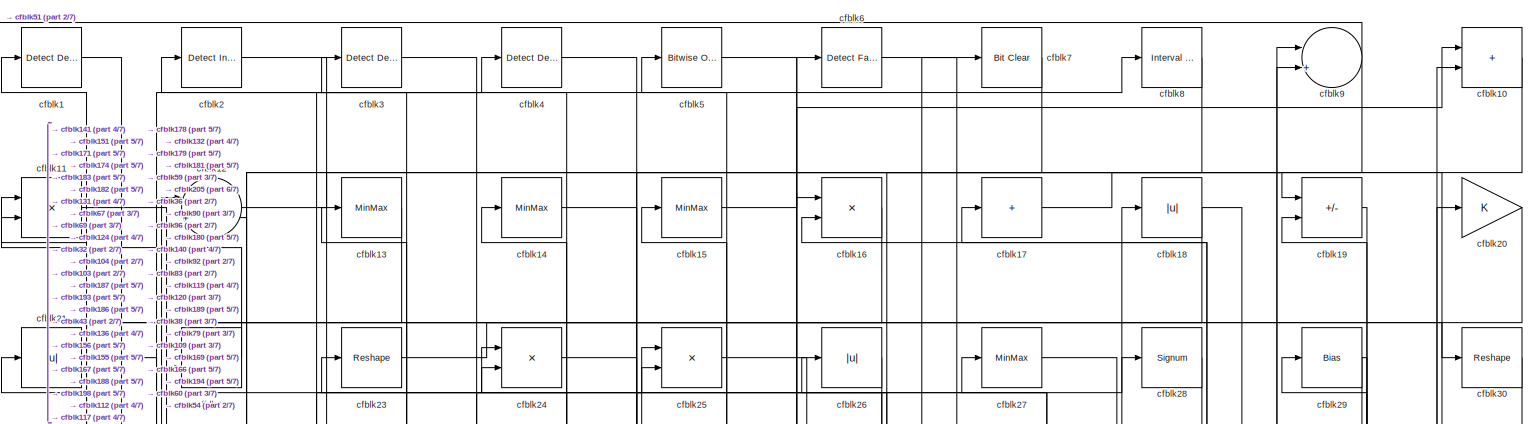
[diagram: root canvas - part 1/7, full width, top band]
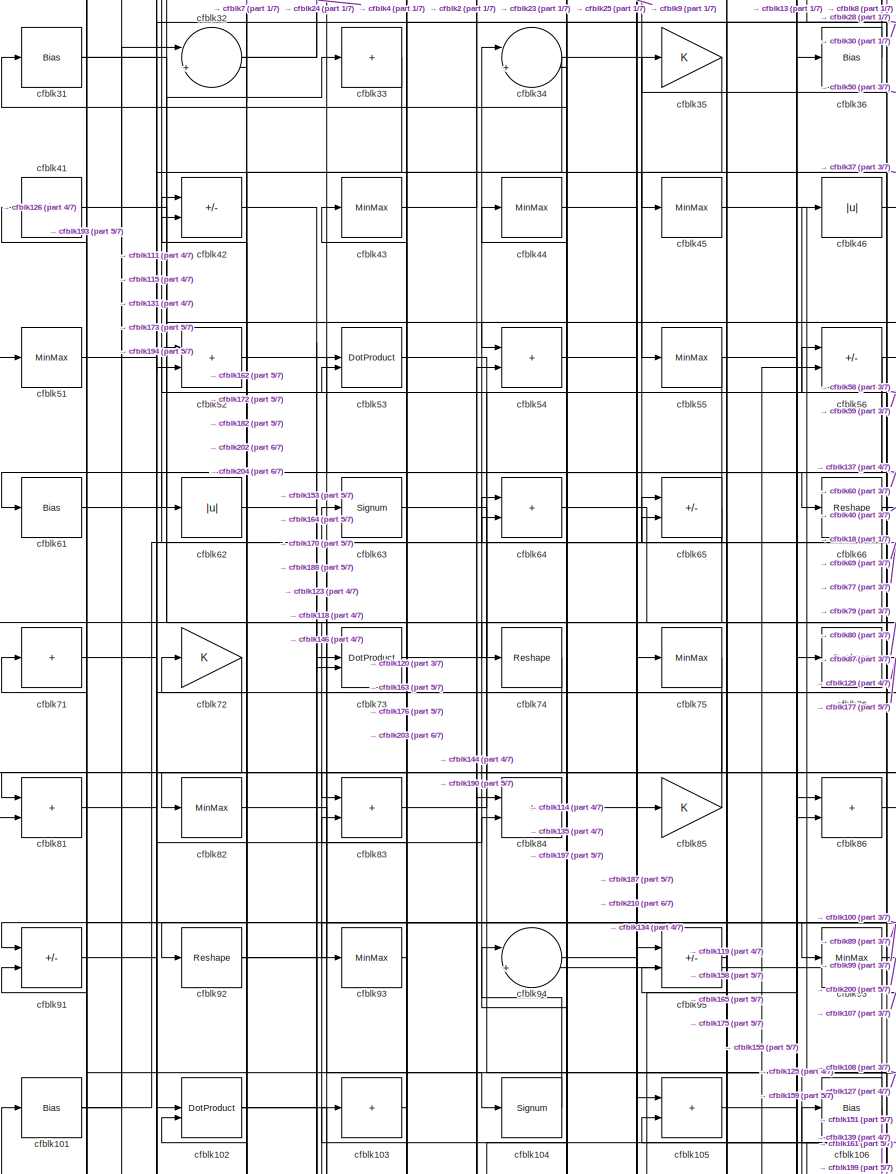
[diagram: root canvas - part 2/7, top left region]
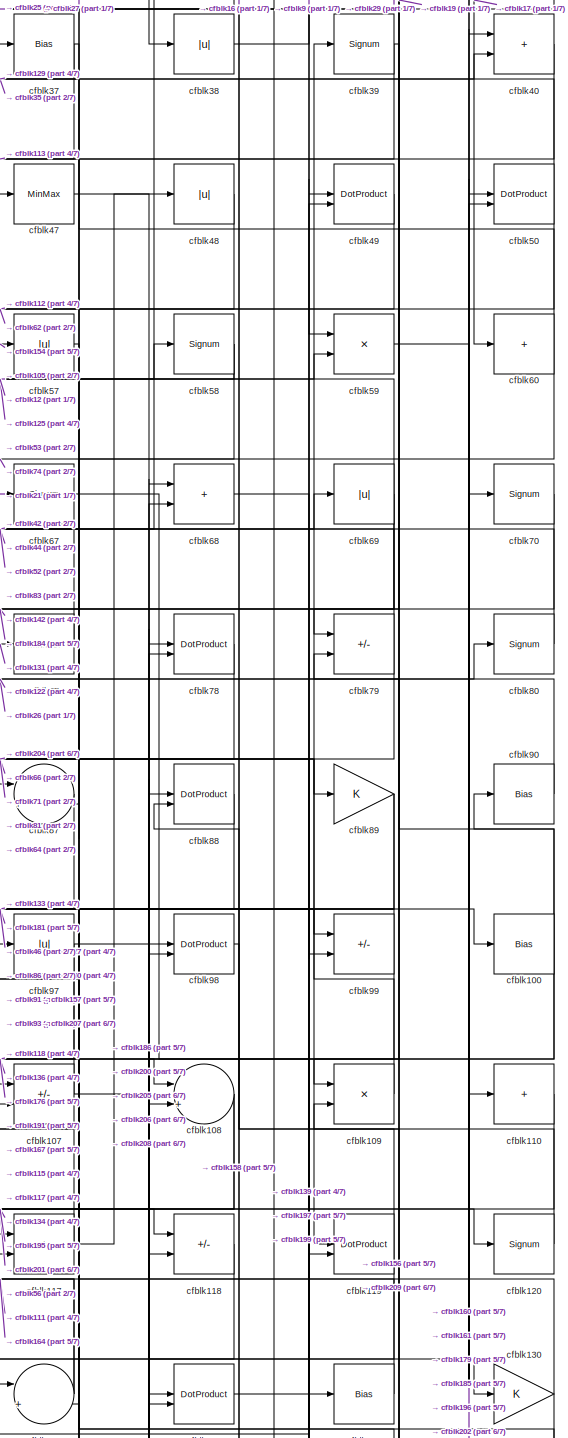
[diagram: root canvas - part 3/7, middle right region]
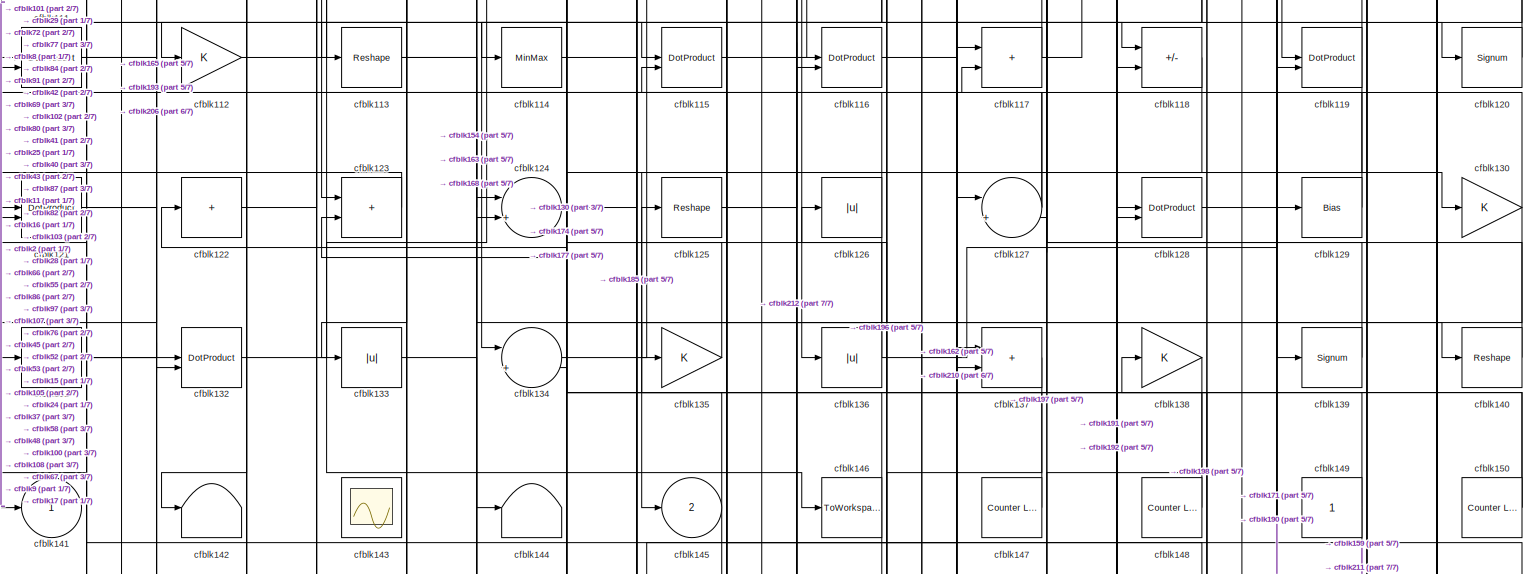
[diagram: root canvas - part 4/7, full width, middle band]
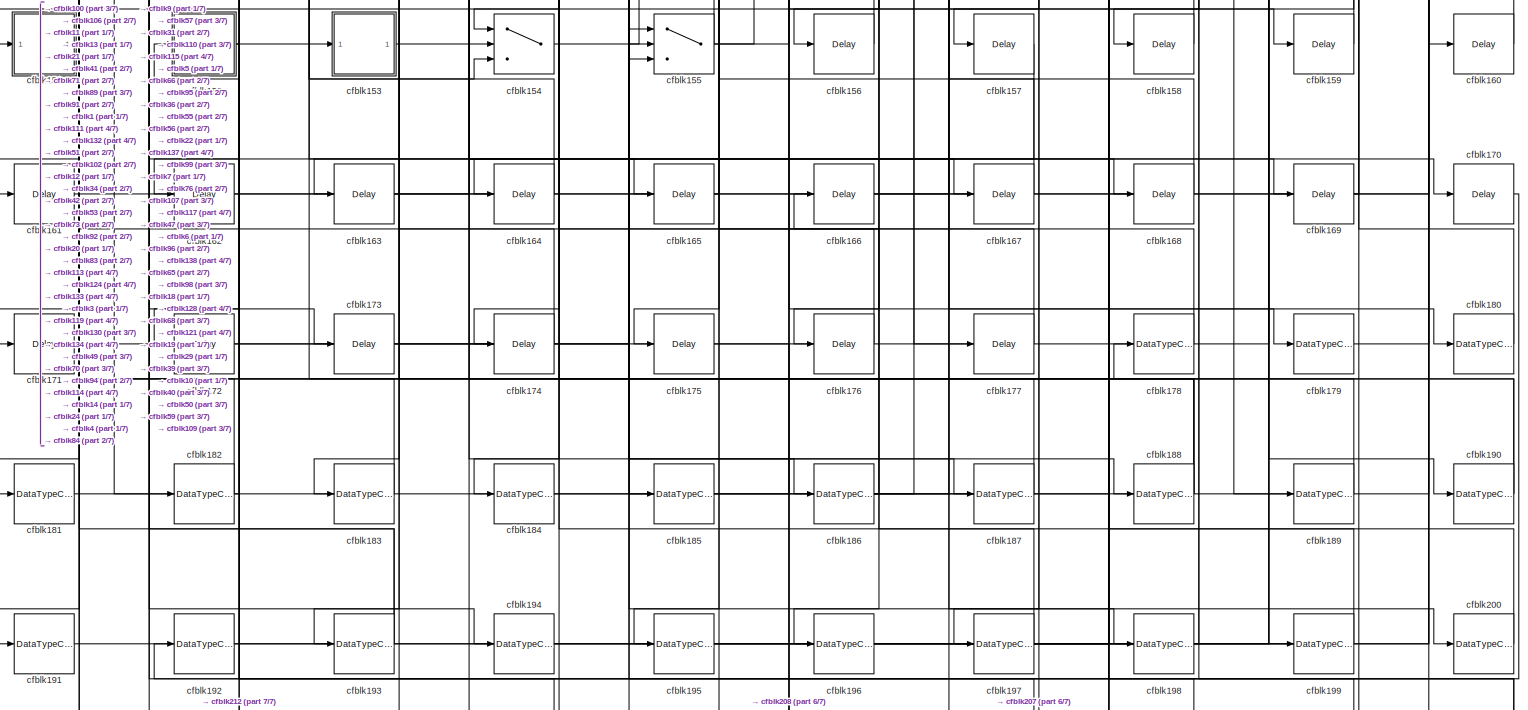
[diagram: root canvas - part 5/7, full width, bottom band]
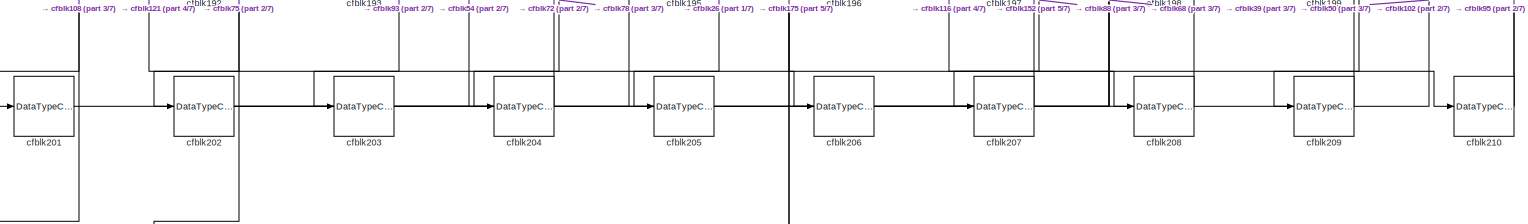
[diagram: root canvas - part 6/7, full width, bottom band]
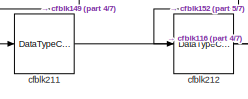
[diagram: root canvas - part 7/7, bottom left region]
MODEL slx_6dbc6abf28c7
KIND model
CONFIG AbsTol = auto
CONFIG EnableMultiTasking = off
CONFIG FixedStep = auto
CONFIG MaxStep = auto
CONFIG MinStep = auto
CONFIG RelTol = 1e-3
CONFIG SampleTimeConstraint = Unconstrained
CONFIG SolverName = VariableStepAuto
CONFIG StartTime = 0.0
CONFIG StopTime = 10.0
BLOCK [Reference] cfblk1  REF=simulink/Logic and Bit
Operations/Detect
Decrease
  LibrarySourceBlock = hdlsllib/Logic and Bit\nOperations/Detect\nDecrease
  SourceBlock = simulink/Logic and Bit\nOperations/Detect\nDecrease
  SourceType = Detect Decrease
BLOCK [Sum] cfblk10
  IconShape = rectangular
BLOCK [Bias] cfblk100
  Bias = 0.0
  SaturateOnIntegerOverflow = off
BLOCK [Bias] cfblk101
  Bias = 0.0
  SaturateOnIntegerOverflow = off
BLOCK [DotProduct] cfblk102
  OutDataTypeStr = Inherit: Inherit via internal rule
BLOCK [Sum] cfblk103
  IconShape = rectangular
  Inputs = +
BLOCK [Signum] cfblk104
BLOCK [Sum] cfblk105
  IconShape = rectangular
BLOCK [Bias] cfblk106
  Bias = 0.0
  SaturateOnIntegerOverflow = off
BLOCK [Sum] cfblk107
  IconShape = rectangular
  Inputs = +-
BLOCK [Sum] cfblk108
  Inputs = |++
BLOCK [Product] cfblk109
  Inputs = */
  RndMeth = Zero
  SaturateOnIntegerOverflow = on
BLOCK [Product] cfblk11
  Inputs = */
  RndMeth = Zero
  SaturateOnIntegerOverflow = on
BLOCK [Sum] cfblk110
  IconShape = rectangular
  Inputs = +
BLOCK [DotProduct] cfblk111
  OutDataTypeStr = Inherit: Inherit via internal rule
BLOCK [Gain] cfblk112
BLOCK [Reshape] cfblk113
BLOCK [MinMax] cfblk114
BLOCK [DotProduct] cfblk115
  OutDataTypeStr = Inherit: Inherit via internal rule
BLOCK [DotProduct] cfblk116
  OutDataTypeStr = Inherit: Inherit via internal rule
BLOCK [Sum] cfblk117
  IconShape = rectangular
BLOCK [Sum] cfblk118
  IconShape = rectangular
  Inputs = +-
BLOCK [DotProduct] cfblk119
  OutDataTypeStr = Inherit: Inherit via internal rule
BLOCK [Sum] cfblk12
  Inputs = |++
BLOCK [Signum] cfblk120
BLOCK [DotProduct] cfblk121
  OutDataTypeStr = Inherit: Inherit via internal rule
BLOCK [Sum] cfblk122
  IconShape = rectangular
  Inputs = +
BLOCK [Sum] cfblk123
  IconShape = rectangular
BLOCK [Sum] cfblk124
  Inputs = |++
BLOCK [Reshape] cfblk125
BLOCK [Abs] cfblk126
  SaturateOnIntegerOverflow = off
BLOCK [Sum] cfblk127
  Inputs = |++
BLOCK [DotProduct] cfblk128
  OutDataTypeStr = Inherit: Inherit via internal rule
BLOCK [Bias] cfblk129
  Bias = 0.0
  SaturateOnIntegerOverflow = off
BLOCK [MinMax] cfblk13
BLOCK [Gain] cfblk130
BLOCK [Sum] cfblk131
  IconShape = rectangular
  Inputs = +
BLOCK [DotProduct] cfblk132
  OutDataTypeStr = Inherit: Inherit via internal rule
BLOCK [Abs] cfblk133
  SaturateOnIntegerOverflow = off
BLOCK [Sum] cfblk134
  Inputs = |++
BLOCK [Gain] cfblk135
BLOCK [Abs] cfblk136
  SaturateOnIntegerOverflow = off
BLOCK [Sum] cfblk137
  IconShape = rectangular
BLOCK [Gain] cfblk138
BLOCK [Signum] cfblk139
BLOCK [MinMax] cfblk14
BLOCK [Reshape] cfblk140
BLOCK [Outport] cfblk141
  VectorParamsAs1DForOutWhenUnconnected = off
BLOCK [Terminator] cfblk142
BLOCK [Scope] cfblk143
  Floating = on
  NumInputPorts = 1
  ScopeSpecificationString = Simulink.scopes.TimeScopeBlockCfg('CurrentConfiguration', extmgr.ConfigurationSet(extmgr.Configuration('Core','General UI',true,'FigureColor',[0.156862745098039 0.156862745098039 0.156862745098039]),extmgr.Configuration('Core','Source UI',true),extmgr.Configuration('Sources','WiredSimulink',true,'DataLoggingVariableName','ScopeData1','DataLoggingSaveFormat','StructureWithTime','DataLoggingLimitDat...<+2713ch>
BLOCK [Terminator] cfblk144
BLOCK [Outport] cfblk145
  Port = 2
  VectorParamsAs1DForOutWhenUnconnected = off
BLOCK [ToWorkspace] cfblk146
  MaxDataPoints = inf
  SampleTime = -1
  SaveFormat = Timeseries
  VariableName = simout
BLOCK [Reference] cfblk147  REF=hdlsllib/Sources/Counter
Limited
  SourceBlock = hdlsllib/Sources/Counter\nLimited
  SourceType = Counter Limited
BLOCK [Reference] cfblk148  REF=hdlsllib/Sources/Counter
Limited
  SourceBlock = hdlsllib/Sources/Counter\nLimited
  SourceType = Counter Limited
BLOCK [Constant] cfblk149
  SampleTime = -1
BLOCK [MinMax] cfblk15
BLOCK [Reference] cfblk150  REF=hdlsllib/Sources/Counter
Limited
  SourceBlock = hdlsllib/Sources/Counter\nLimited
  SourceType = Counter Limited
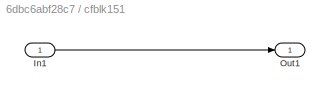
BLOCK [SubSystem] cfblk151
  LibrarySourceBlock = hdlsllib/Ports &\nSubsystems/Subsystem
BLOCK [Inport] cfblk151/In1
BLOCK [Outport] cfblk151/Out1
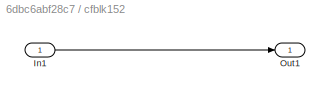
BLOCK [SubSystem] cfblk152
  LibrarySourceBlock = hdlsllib/Ports &\nSubsystems/Subsystem
BLOCK [Inport] cfblk152/In1
BLOCK [Outport] cfblk152/Out1
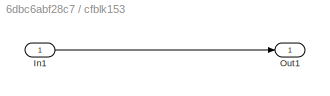
BLOCK [SubSystem] cfblk153
  LibrarySourceBlock = hdlsllib/Ports &\nSubsystems/Subsystem
BLOCK [Inport] cfblk153/In1
BLOCK [Outport] cfblk153/Out1
BLOCK [Switch] cfblk154
  InputSameDT = off
  SaturateOnIntegerOverflow = off
BLOCK [Switch] cfblk155
  InputSameDT = off
  SaturateOnIntegerOverflow = off
BLOCK [Delay] cfblk156
  InputPortMap = u0
  SampleTime = 1
BLOCK [Delay] cfblk157
  InputPortMap = u0
  SampleTime = 1
BLOCK [Delay] cfblk158
  InputPortMap = u0
  SampleTime = 1
BLOCK [Delay] cfblk159
  InputPortMap = u0
  SampleTime = 1
BLOCK [Product] cfblk16
  Inputs = */
  RndMeth = Zero
  SaturateOnIntegerOverflow = on
BLOCK [Delay] cfblk160
  InputPortMap = u0
  SampleTime = 1
BLOCK [Delay] cfblk161
  InputPortMap = u0
  SampleTime = 1
BLOCK [Delay] cfblk162
  InputPortMap = u0
  SampleTime = 1
BLOCK [Delay] cfblk163
  InputPortMap = u0
  SampleTime = 1
BLOCK [Delay] cfblk164
  InputPortMap = u0
  SampleTime = 1
BLOCK [Delay] cfblk165
  InputPortMap = u0
  SampleTime = 1
BLOCK [Delay] cfblk166
  InputPortMap = u0
  SampleTime = 1
BLOCK [Delay] cfblk167
  InputPortMap = u0
  SampleTime = 1
BLOCK [Delay] cfblk168
  InputPortMap = u0
  SampleTime = 1
BLOCK [Delay] cfblk169
  InputPortMap = u0
  SampleTime = 1
BLOCK [Sum] cfblk17
  IconShape = rectangular
  Inputs = +
BLOCK [Delay] cfblk170
  InputPortMap = u0
  SampleTime = 1
BLOCK [Delay] cfblk171
  InputPortMap = u0
  SampleTime = 1
BLOCK [Delay] cfblk172
  InputPortMap = u0
  SampleTime = 1
BLOCK [Delay] cfblk173
  InputPortMap = u0
  SampleTime = 1
BLOCK [Delay] cfblk174
  InputPortMap = u0
  SampleTime = 1
BLOCK [Delay] cfblk175
  InputPortMap = u0
  SampleTime = 1
BLOCK [Delay] cfblk176
  InputPortMap = u0
  SampleTime = 1
BLOCK [Delay] cfblk177
  InputPortMap = u0
  SampleTime = 1
BLOCK [DataTypeConversion] cfblk178
  OutDataTypeStr = boolean
  RndMeth = Floor
  SaturateOnIntegerOverflow = off
BLOCK [DataTypeConversion] cfblk179
  OutDataTypeStr = uint8
  RndMeth = Floor
  SaturateOnIntegerOverflow = off
BLOCK [Abs] cfblk18
  SaturateOnIntegerOverflow = off
BLOCK [DataTypeConversion] cfblk180
  OutDataTypeStr = uint8
  RndMeth = Floor
  SaturateOnIntegerOverflow = off
BLOCK [DataTypeConversion] cfblk181
  OutDataTypeStr = uint8
  RndMeth = Floor
  SaturateOnIntegerOverflow = off
BLOCK [DataTypeConversion] cfblk182
  RndMeth = Floor
  SaturateOnIntegerOverflow = off
BLOCK [DataTypeConversion] cfblk183
  OutDataTypeStr = uint8
  RndMeth = Floor
  SaturateOnIntegerOverflow = off
BLOCK [DataTypeConversion] cfblk184
  OutDataTypeStr = uint8
  RndMeth = Floor
  SaturateOnIntegerOverflow = off
BLOCK [DataTypeConversion] cfblk185
  OutDataTypeStr = uint8
  RndMeth = Floor
  SaturateOnIntegerOverflow = off
BLOCK [DataTypeConversion] cfblk186
  RndMeth = Floor
  SaturateOnIntegerOverflow = off
BLOCK [DataTypeConversion] cfblk187
  OutDataTypeStr = uint8
  RndMeth = Floor
  SaturateOnIntegerOverflow = off
BLOCK [DataTypeConversion] cfblk188
  RndMeth = Floor
  SaturateOnIntegerOverflow = off
BLOCK [DataTypeConversion] cfblk189
  OutDataTypeStr = uint8
  RndMeth = Floor
  SaturateOnIntegerOverflow = off
BLOCK [Sum] cfblk19
  IconShape = rectangular
  Inputs = +-
BLOCK [DataTypeConversion] cfblk190
  RndMeth = Floor
  SaturateOnIntegerOverflow = off
BLOCK [DataTypeConversion] cfblk191
  OutDataTypeStr = uint8
  RndMeth = Floor
  SaturateOnIntegerOverflow = off
BLOCK [DataTypeConversion] cfblk192
  OutDataTypeStr = uint8
  RndMeth = Floor
  SaturateOnIntegerOverflow = off
BLOCK [DataTypeConversion] cfblk193
  RndMeth = Floor
  SaturateOnIntegerOverflow = off
BLOCK [DataTypeConversion] cfblk194
  OutDataTypeStr = uint8
  RndMeth = Floor
  SaturateOnIntegerOverflow = off
BLOCK [DataTypeConversion] cfblk195
  OutDataTypeStr = uint8
  RndMeth = Floor
  SaturateOnIntegerOverflow = off
BLOCK [DataTypeConversion] cfblk196
  OutDataTypeStr = uint8
  RndMeth = Floor
  SaturateOnIntegerOverflow = off
BLOCK [DataTypeConversion] cfblk197
  RndMeth = Floor
  SaturateOnIntegerOverflow = off
BLOCK [DataTypeConversion] cfblk198
  OutDataTypeStr = uint8
  RndMeth = Floor
  SaturateOnIntegerOverflow = off
BLOCK [DataTypeConversion] cfblk199
  OutDataTypeStr = uint8
  RndMeth = Floor
  SaturateOnIntegerOverflow = off
BLOCK [Reference] cfblk2  REF=simulink/Logic and Bit
Operations/Detect
Increase
  LibrarySourceBlock = hdlsllib/Logic and Bit\nOperations/Detect\nIncrease
  SourceBlock = simulink/Logic and Bit\nOperations/Detect\nIncrease
  SourceType = Detect Increase
BLOCK [Gain] cfblk20
BLOCK [DataTypeConversion] cfblk200
  OutDataTypeStr = uint8
  RndMeth = Floor
  SaturateOnIntegerOverflow = off
BLOCK [DataTypeConversion] cfblk201
  OutDataTypeStr = uint8
  RndMeth = Floor
  SaturateOnIntegerOverflow = off
BLOCK [DataTypeConversion] cfblk202
  RndMeth = Floor
  SaturateOnIntegerOverflow = off
BLOCK [DataTypeConversion] cfblk203
  OutDataTypeStr = uint8
  RndMeth = Floor
  SaturateOnIntegerOverflow = off
BLOCK [DataTypeConversion] cfblk204
  OutDataTypeStr = uint8
  RndMeth = Floor
  SaturateOnIntegerOverflow = off
BLOCK [DataTypeConversion] cfblk205
  OutDataTypeStr = uint8
  RndMeth = Floor
  SaturateOnIntegerOverflow = off
BLOCK [DataTypeConversion] cfblk206
  OutDataTypeStr = uint8
  RndMeth = Floor
  SaturateOnIntegerOverflow = off
BLOCK [DataTypeConversion] cfblk207
  OutDataTypeStr = uint8
  RndMeth = Floor
  SaturateOnIntegerOverflow = off
BLOCK [DataTypeConversion] cfblk208
  OutDataTypeStr = uint8
  RndMeth = Floor
  SaturateOnIntegerOverflow = off
BLOCK [DataTypeConversion] cfblk209
  OutDataTypeStr = uint8
  RndMeth = Floor
  SaturateOnIntegerOverflow = off
BLOCK [Abs] cfblk21
  SaturateOnIntegerOverflow = off
BLOCK [DataTypeConversion] cfblk210
  RndMeth = Floor
  SaturateOnIntegerOverflow = off
BLOCK [DataTypeConversion] cfblk211
  OutDataTypeStr = uint8
  RndMeth = Floor
  SaturateOnIntegerOverflow = off
BLOCK [DataTypeConversion] cfblk212
  OutDataTypeStr = uint8
  RndMeth = Floor
  SaturateOnIntegerOverflow = off
BLOCK [Sum] cfblk22
  IconShape = rectangular
BLOCK [Reshape] cfblk23
BLOCK [Product] cfblk24
  Inputs = */
  RndMeth = Zero
  SaturateOnIntegerOverflow = on
BLOCK [Product] cfblk25
  Inputs = */
  RndMeth = Zero
  SaturateOnIntegerOverflow = on
BLOCK [Abs] cfblk26
  SaturateOnIntegerOverflow = off
BLOCK [MinMax] cfblk27
BLOCK [Signum] cfblk28
BLOCK [Bias] cfblk29
  Bias = 0.0
  SaturateOnIntegerOverflow = off
BLOCK [Reference] cfblk3  REF=simulink/Logic and Bit
Operations/Detect
Decrease
  LibrarySourceBlock = hdlsllib/Logic and Bit\nOperations/Detect\nDecrease
  SourceBlock = simulink/Logic and Bit\nOperations/Detect\nDecrease
  SourceType = Detect Decrease
BLOCK [Reshape] cfblk30
BLOCK [Bias] cfblk31
  Bias = 0.0
  SaturateOnIntegerOverflow = off
BLOCK [Sum] cfblk32
  Inputs = |++
BLOCK [Sum] cfblk33
  IconShape = rectangular
  Inputs = +
BLOCK [Sum] cfblk34
  Inputs = |++
BLOCK [Gain] cfblk35
BLOCK [Bias] cfblk36
  Bias = 0.0
  SaturateOnIntegerOverflow = off
BLOCK [Bias] cfblk37
  Bias = 0.0
  SaturateOnIntegerOverflow = off
BLOCK [Abs] cfblk38
  SaturateOnIntegerOverflow = off
BLOCK [Signum] cfblk39
BLOCK [Reference] cfblk4  REF=simulink/Logic and Bit
Operations/Detect
Decrease
  LibrarySourceBlock = hdlsllib/Logic and Bit\nOperations/Detect\nDecrease
  SourceBlock = simulink/Logic and Bit\nOperations/Detect\nDecrease
  SourceType = Detect Decrease
BLOCK [Sum] cfblk40
  IconShape = rectangular
BLOCK [Bias] cfblk41
  Bias = 0.0
  SaturateOnIntegerOverflow = off
BLOCK [Sum] cfblk42
  IconShape = rectangular
  Inputs = +-
BLOCK [MinMax] cfblk43
BLOCK [MinMax] cfblk44
BLOCK [MinMax] cfblk45
BLOCK [Abs] cfblk46
  SaturateOnIntegerOverflow = off
BLOCK [MinMax] cfblk47
BLOCK [Abs] cfblk48
  SaturateOnIntegerOverflow = off
BLOCK [DotProduct] cfblk49
  OutDataTypeStr = Inherit: Inherit via internal rule
BLOCK [Reference] cfblk5  REF=simulink/Logic and Bit
Operations/Bitwise
Operator
  LibrarySourceBlock = hdlsllib/Logic and Bit\nOperations/Bitwise\nOperator
  SourceBlock = simulink/Logic and Bit\nOperations/Bitwise\nOperator
  SourceType = Bitwise Operator
BLOCK [DotProduct] cfblk50
  OutDataTypeStr = Inherit: Inherit via internal rule
BLOCK [MinMax] cfblk51
BLOCK [Sum] cfblk52
  IconShape = rectangular
BLOCK [DotProduct] cfblk53
  OutDataTypeStr = Inherit: Inherit via internal rule
BLOCK [Sum] cfblk54
  IconShape = rectangular
BLOCK [MinMax] cfblk55
BLOCK [Sum] cfblk56
  IconShape = rectangular
  Inputs = +-
BLOCK [Abs] cfblk57
  SaturateOnIntegerOverflow = off
BLOCK [Signum] cfblk58
BLOCK [Product] cfblk59
  Inputs = */
  RndMeth = Zero
  SaturateOnIntegerOverflow = on
BLOCK [Reference] cfblk6  REF=hdlsllib/Logic and Bit
Operations/Detect Fall
Nonpositive
  SourceBlock = hdlsllib/Logic and Bit\nOperations/Detect Fall\nNonpositive
  SourceType = Detect Fall Nonpositive
BLOCK [Sum] cfblk60
  IconShape = rectangular
  Inputs = +
BLOCK [Bias] cfblk61
  Bias = 0.0
  SaturateOnIntegerOverflow = off
BLOCK [Abs] cfblk62
  SaturateOnIntegerOverflow = off
BLOCK [Signum] cfblk63
BLOCK [Sum] cfblk64
  IconShape = rectangular
BLOCK [Sum] cfblk65
  IconShape = rectangular
  Inputs = +-
BLOCK [Reshape] cfblk66
BLOCK [Signum] cfblk67
BLOCK [Sum] cfblk68
  IconShape = rectangular
BLOCK [Abs] cfblk69
  SaturateOnIntegerOverflow = off
BLOCK [Reference] cfblk7  REF=simulink/Logic and Bit
Operations/Bit Clear
  LibrarySourceBlock = hdlsllib/Logic and Bit\nOperations/Bit Clear
  SourceBlock = simulink/Logic and Bit\nOperations/Bit Clear
  SourceType = Bit Clear
BLOCK [Signum] cfblk70
BLOCK [Sum] cfblk71
  IconShape = rectangular
  Inputs = +
BLOCK [Gain] cfblk72
BLOCK [DotProduct] cfblk73
  OutDataTypeStr = Inherit: Inherit via internal rule
BLOCK [Reshape] cfblk74
BLOCK [MinMax] cfblk75
BLOCK [Reshape] cfblk76
BLOCK [MinMax] cfblk77
BLOCK [DotProduct] cfblk78
  OutDataTypeStr = Inherit: Inherit via internal rule
BLOCK [Sum] cfblk79
  IconShape = rectangular
  Inputs = +-
BLOCK [Reference] cfblk8  REF=hdlsllib/Logic and Bit
Operations/Interval Test
  SourceBlock = hdlsllib/Logic and Bit\nOperations/Interval Test
  SourceType = Interval Test
BLOCK [Signum] cfblk80
BLOCK [Sum] cfblk81
  IconShape = rectangular
BLOCK [MinMax] cfblk82
BLOCK [Sum] cfblk83
  IconShape = rectangular
BLOCK [Sum] cfblk84
  IconShape = rectangular
BLOCK [Gain] cfblk85
BLOCK [Sum] cfblk86
  IconShape = rectangular
BLOCK [Sum] cfblk87
  Inputs = |++
BLOCK [DotProduct] cfblk88
  OutDataTypeStr = Inherit: Inherit via internal rule
BLOCK [Gain] cfblk89
BLOCK [Sum] cfblk9
  Inputs = |++
BLOCK [Bias] cfblk90
  Bias = 0.0
  SaturateOnIntegerOverflow = off
BLOCK [Sum] cfblk91
  IconShape = rectangular
  Inputs = +-
BLOCK [Reshape] cfblk92
BLOCK [MinMax] cfblk93
BLOCK [Sum] cfblk94
  Inputs = |++
BLOCK [Sum] cfblk95
  IconShape = rectangular
  Inputs = +-
BLOCK [MinMax] cfblk96
BLOCK [Abs] cfblk97
  SaturateOnIntegerOverflow = off
BLOCK [DotProduct] cfblk98
  OutDataTypeStr = Inherit: Inherit via internal rule
BLOCK [Sum] cfblk99
  IconShape = rectangular
  Inputs = +-
NET cfblk100:1 -> cfblk118:2, cfblk191:1, cfblk79:2, cfblk90:1
NET cfblk101:1 -> cfblk32:1, cfblk63:1
NET cfblk102:1 -> cfblk118:1, cfblk146:1
LINE cfblk103:1 -> cfblk23:1
LINE cfblk104:1 -> cfblk34:1
LINE cfblk105:1 -> cfblk59:2
NET cfblk106:1 -> cfblk151:1, cfblk161:1, cfblk94:2
NET cfblk107:1 -> cfblk130:1, cfblk56:1
NET cfblk108:1 -> cfblk134:1, cfblk201:1
LINE cfblk109:1 -> cfblk39:1
LINE cfblk10:1 -> cfblk22:1
LINE cfblk110:1 -> cfblk195:1
NET cfblk111:1 -> cfblk165:1, cfblk84:2
LINE cfblk112:1 -> cfblk25:1
NET cfblk113:1 -> cfblk140:1, cfblk168:1
LINE cfblk114:1 -> cfblk185:1
LINE cfblk115:1 -> cfblk107:2
LINE cfblk116:1 -> cfblk210:1
NET cfblk117:1 -> cfblk15:1, cfblk48:1
LINE cfblk118:1 -> cfblk145:1
NET cfblk119:1 -> cfblk174:1, cfblk17:1
LINE cfblk11:1 -> cfblk124:1
LINE cfblk120:1 -> cfblk16:2
NET cfblk121:1 -> cfblk117:2, cfblk206:1
LINE cfblk122:1 -> cfblk80:1
LINE cfblk123:1 -> cfblk121:1
LINE cfblk124:1 -> cfblk28:1
NET cfblk125:1 -> cfblk58:1, cfblk86:1
NET cfblk126:1 -> cfblk101:1, cfblk135:1
NET cfblk127:1 -> cfblk42:1, cfblk43:1
LINE cfblk128:1 -> cfblk190:1
LINE cfblk129:1 -> cfblk37:1
LINE cfblk12:1 -> cfblk19:1
NET cfblk130:1 -> cfblk111:1, cfblk164:1
NET cfblk131:1 -> cfblk77:1, cfblk8:1
LINE cfblk132:1 -> cfblk16:1
LINE cfblk133:1 -> cfblk154:2
LINE cfblk134:1 -> cfblk76:1
LINE cfblk135:1 -> cfblk103:1
NET cfblk136:1 -> cfblk2:1, cfblk9:1
LINE cfblk137:1 -> cfblk196:1
LINE cfblk138:1 -> cfblk197:1
LINE cfblk139:1 -> cfblk105:2
LINE cfblk13:1 -> cfblk171:1
LINE cfblk140:1 -> cfblk24:1
LINE cfblk147:1 -> cfblk122:1
LINE cfblk148:1 -> cfblk126:1
NET cfblk149:1 -> cfblk125:1, cfblk211:1
LINE cfblk14:1 -> cfblk188:1
NET cfblk150:1 -> cfblk123:2, cfblk97:1
LINE cfblk151/In1:1 -> cfblk151/Out1:1
LINE cfblk151:1 -> cfblk21:1
LINE cfblk152/In1:1 -> cfblk152/Out1:1
NET cfblk152:1 -> cfblk154:3, cfblk212:1
LINE cfblk153/In1:1 -> cfblk153/Out1:1
LINE cfblk153:1 -> cfblk169:1
LINE cfblk154:1 -> cfblk57:1
NET cfblk155:1 -> cfblk31:1, cfblk36:1, cfblk56:2
LINE cfblk156:1 -> cfblk22:2
LINE cfblk157:1 -> cfblk183:1
LINE cfblk158:1 -> cfblk65:2
LINE cfblk159:1 -> cfblk121:2
LINE cfblk15:1 -> cfblk10:1
LINE cfblk160:1 -> cfblk109:2
LINE cfblk161:1 -> cfblk50:2
LINE cfblk162:1 -> cfblk117:1
LINE cfblk163:1 -> cfblk124:2
LINE cfblk164:1 -> cfblk73:1
LINE cfblk165:1 -> cfblk95:2
LINE cfblk166:1 -> cfblk10:2
LINE cfblk167:1 -> cfblk107:1
LINE cfblk168:1 -> cfblk115:2
LINE cfblk169:1 -> cfblk19:2
LINE cfblk16:1 -> cfblk141:1
LINE cfblk170:1 -> cfblk192:1
LINE cfblk171:1 -> cfblk119:2
LINE cfblk172:1 -> cfblk155:1
LINE cfblk173:1 -> cfblk155:2
LINE cfblk174:1 -> cfblk11:2
LINE cfblk175:1 -> cfblk208:1
LINE cfblk176:1 -> cfblk83:2
LINE cfblk177:1 -> cfblk134:2
LINE cfblk178:1 -> cfblk5:1
LINE cfblk179:1 -> cfblk40:1
LINE cfblk17:1 -> cfblk60:1
LINE cfblk180:1 -> cfblk29:1
LINE cfblk181:1 -> cfblk6:1
NET cfblk182:1 -> cfblk12:2, cfblk41:1
LINE cfblk183:1 -> cfblk1:1
LINE cfblk184:1 -> cfblk47:1
LINE cfblk185:1 -> cfblk70:1
NET cfblk186:1 -> cfblk166:1, cfblk7:1, cfblk98:2
LINE cfblk187:1 -> cfblk3:1
NET cfblk188:1 -> cfblk102:2, cfblk178:1, cfblk53:1
LINE cfblk189:1 -> cfblk14:1
NET cfblk18:1 -> cfblk189:1, cfblk32:2
NET cfblk190:1 -> cfblk84:1, cfblk91:2
LINE cfblk191:1 -> cfblk128:1
LINE cfblk192:1 -> cfblk128:2
NET cfblk193:1 -> cfblk132:1, cfblk71:1
LINE cfblk194:1 -> cfblk20:1
LINE cfblk195:1 -> cfblk49:1
LINE cfblk196:1 -> cfblk110:1
NET cfblk197:1 -> cfblk49:2, cfblk94:1
LINE cfblk198:1 -> cfblk138:1
LINE cfblk199:1 -> cfblk106:1
LINE cfblk19:1 -> cfblk109:1
LINE cfblk1:1 -> cfblk182:1
LINE cfblk200:1 -> cfblk68:1
LINE cfblk201:1 -> cfblk68:2
NET cfblk202:1 -> cfblk50:1, cfblk54:2
LINE cfblk203:1 -> cfblk75:1
LINE cfblk204:1 -> cfblk72:1
LINE cfblk205:1 -> cfblk78:1
LINE cfblk206:1 -> cfblk78:2
LINE cfblk207:1 -> cfblk152:1
LINE cfblk208:1 -> cfblk88:1
LINE cfblk209:1 -> cfblk88:2
LINE cfblk20:1 -> cfblk193:1
NET cfblk210:1 -> cfblk102:1, cfblk95:1
LINE cfblk211:1 -> cfblk116:1
LINE cfblk212:1 -> cfblk116:2
LINE cfblk21:1 -> cfblk67:1
LINE cfblk22:1 -> cfblk11:1
LINE cfblk23:1 -> cfblk30:1
LINE cfblk24:1 -> cfblk167:1
LINE cfblk25:1 -> cfblk59:1
LINE cfblk26:1 -> cfblk205:1
LINE cfblk27:1 -> cfblk38:1
LINE cfblk28:1 -> cfblk83:1
NET cfblk29:1 -> cfblk132:2, cfblk79:1
LINE cfblk2:1 -> cfblk104:1
LINE cfblk30:1 -> cfblk54:1
NET cfblk31:1 -> cfblk173:1, cfblk85:1
NET cfblk32:1 -> cfblk24:2, cfblk4:1
LINE cfblk33:1 -> cfblk82:1
NET cfblk34:1 -> cfblk172:1, cfblk45:1
LINE cfblk35:1 -> cfblk55:1
LINE cfblk36:1 -> cfblk13:1
NET cfblk37:1 -> cfblk52:2, cfblk87:2
LINE cfblk38:1 -> cfblk9:2
NET cfblk39:1 -> cfblk156:1, cfblk209:1
LINE cfblk3:1 -> cfblk186:1
LINE cfblk40:1 -> cfblk113:1
LINE cfblk41:1 -> cfblk123:1
LINE cfblk42:1 -> cfblk153:1
LINE cfblk43:1 -> cfblk25:2
LINE cfblk44:1 -> cfblk108:1
LINE cfblk45:1 -> cfblk137:2
LINE cfblk46:1 -> cfblk99:2
LINE cfblk47:1 -> cfblk98:1
LINE cfblk48:1 -> cfblk112:1
LINE cfblk49:1 -> cfblk154:1
LINE cfblk4:1 -> cfblk198:1
NET cfblk50:1 -> cfblk35:1, cfblk62:1
LINE cfblk51:1 -> cfblk194:1
LINE cfblk52:1 -> cfblk137:1
LINE cfblk53:1 -> cfblk127:1
LINE cfblk54:1 -> cfblk66:1
NET cfblk55:1 -> cfblk114:1, cfblk159:1
NET cfblk56:1 -> cfblk120:1, cfblk162:1, cfblk163:1
LINE cfblk57:1 -> cfblk157:1
NET cfblk58:1 -> cfblk127:2, cfblk53:2
LINE cfblk59:1 -> cfblk160:1
LINE cfblk5:1 -> cfblk179:1
NET cfblk60:1 -> cfblk27:1, cfblk74:1
LINE cfblk61:1 -> cfblk33:1
LINE cfblk62:1 -> cfblk100:1
LINE cfblk63:1 -> cfblk86:2
LINE cfblk64:1 -> cfblk87:1
NET cfblk65:1 -> cfblk61:1, cfblk64:2, cfblk73:2
NET cfblk66:1 -> cfblk119:1, cfblk175:1, cfblk40:2
LINE cfblk67:1 -> cfblk139:1
LINE cfblk68:1 -> cfblk199:1
NET cfblk69:1 -> cfblk111:2, cfblk12:1, cfblk142:1
LINE cfblk6:1 -> cfblk180:1
LINE cfblk70:1 -> cfblk184:1
LINE cfblk71:1 -> cfblk89:1
LINE cfblk72:1 -> cfblk131:1
LINE cfblk73:1 -> cfblk46:1
LINE cfblk74:1 -> cfblk81:1
LINE cfblk75:1 -> cfblk202:1
NET cfblk76:1 -> cfblk129:1, cfblk177:1
LINE cfblk77:1 -> cfblk52:1
LINE cfblk78:1 -> cfblk204:1
NET cfblk79:1 -> cfblk42:2, cfblk81:2
LINE cfblk7:1 -> cfblk92:1
LINE cfblk80:1 -> cfblk44:1
LINE cfblk81:1 -> cfblk64:1
LINE cfblk82:1 -> cfblk144:1
LINE cfblk83:1 -> cfblk69:1
LINE cfblk84:1 -> cfblk187:1
LINE cfblk85:1 -> cfblk34:2
LINE cfblk86:1 -> cfblk99:1
LINE cfblk87:1 -> cfblk133:1
LINE cfblk88:1 -> cfblk207:1
NET cfblk89:1 -> cfblk181:1, cfblk91:1
LINE cfblk8:1 -> cfblk96:1
LINE cfblk90:1 -> cfblk26:1
LINE cfblk91:1 -> cfblk115:1
NET cfblk92:1 -> cfblk170:1, cfblk18:1
LINE cfblk93:1 -> cfblk203:1
LINE cfblk94:1 -> cfblk105:1
LINE cfblk95:1 -> cfblk65:1
LINE cfblk96:1 -> cfblk200:1
NET cfblk97:1 -> cfblk108:2, cfblk136:1
LINE cfblk98:1 -> cfblk158:1
NET cfblk99:1 -> cfblk176:1, cfblk93:1
NET cfblk9:1 -> cfblk155:3, cfblk51:1
note: NET lines group one-source signal fan-out (src -> all destinations, sorted); 1:1 wires keep LINE
